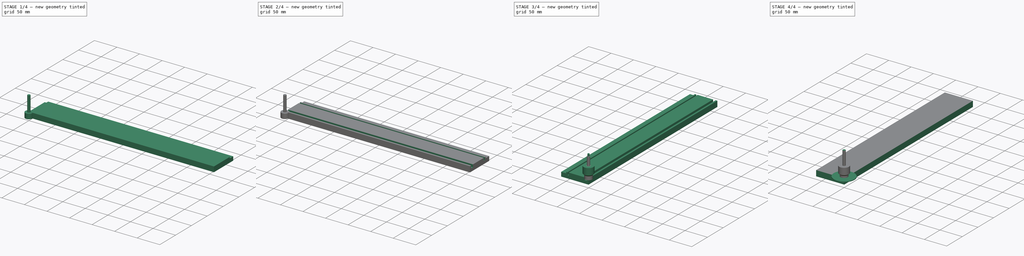
[diagram: build sequence overview — one tinted view per stage of 4, left to right]
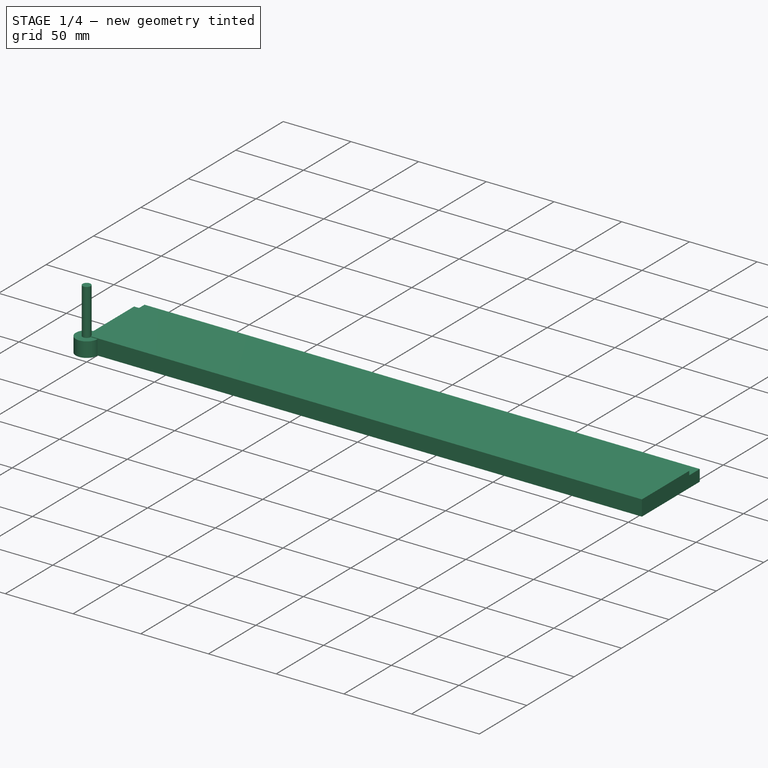
[diagram: stage 1 of 4 — iso view after this stage's code; geometry added in this stage tinted green]
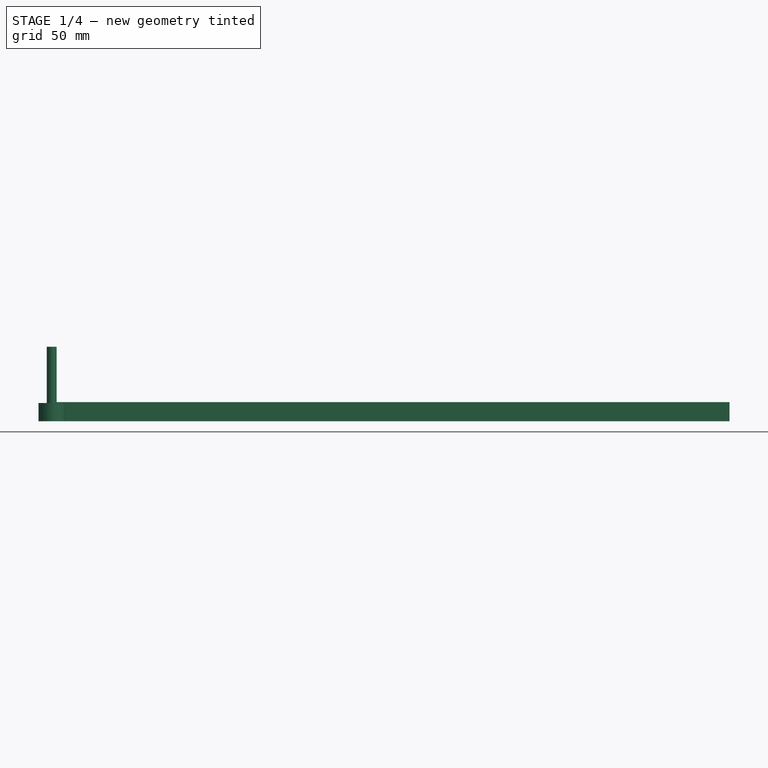
[diagram: stage 1 of 4 — front view after this stage's code; geometry added in this stage tinted green]
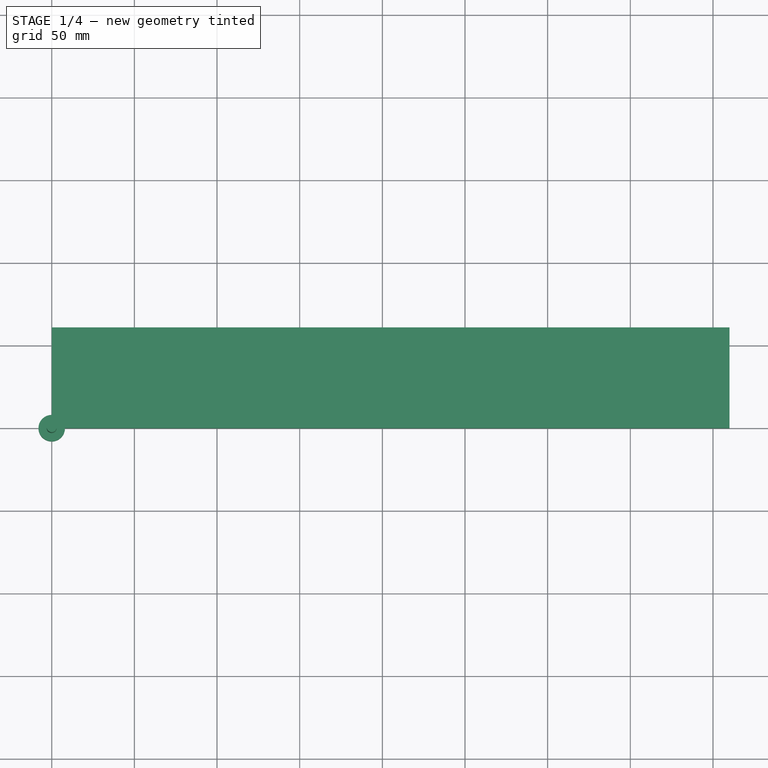
[diagram: stage 1 of 4 — top view after this stage's code; geometry added in this stage tinted green]
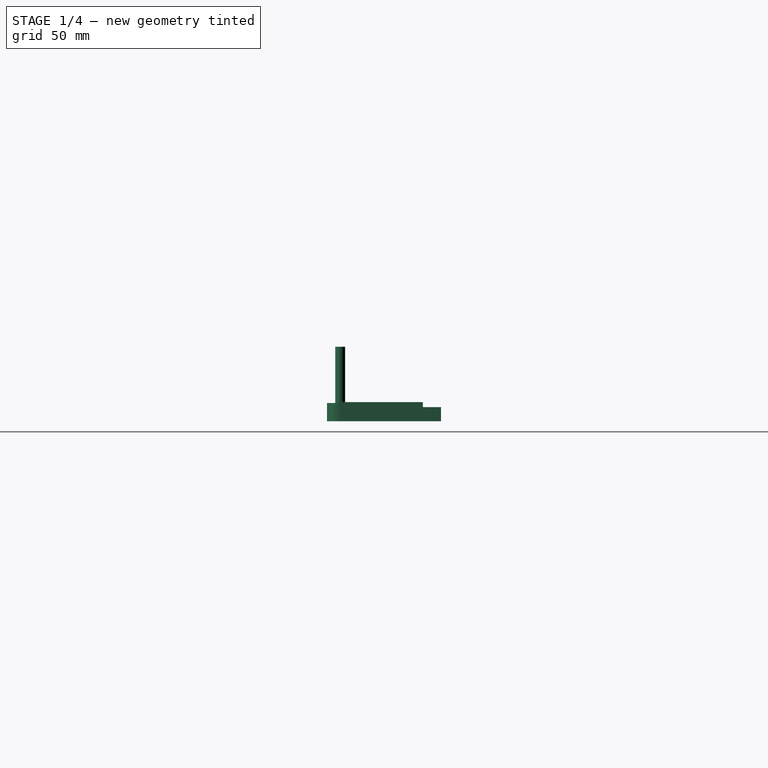
[diagram: stage 1 of 4 — right view after this stage's code; geometry added in this stage tinted green]
FCSTD DOCUMENT  (FreeCAD 0.21R33771 (Git))
Label: cnc_box_model
License: All rights reserved
LicenseURL: http://en.wikipedia.org/wiki/All_rights_reserved
objects: Path::FeaturePython×11, Part::Part2DObjectPython×10, Part::FeaturePython×8, Sketcher::SketchObject×6, App::DocumentObjectGroup×4, PartDesign::Pocket×3, PartDesign::Pad×2, App::Link×1, PartDesign::Body×1, App::FeaturePython×1
note: 40 computed .brp shape members not serialized (recipe doc carries the construction recipe); baked Part::Feature solids carry a one-line shape summary decoded from their .brp
EXTERNAL_REF file=../master_kumiko_box.FCStd obj=Spreadsheet

FEATURE [Sketcher::SketchObject] Sketch
  FullyConstrained = true
  MapMode = 5
  Support = -> [XY_Plane]
  expr: Constraints[10] = 2 * (<<SpreadSheet>>.box_length + <<SpreadSheet>>.box_width)
  expr: Constraints[9] = <<SpreadSheet>>.box_height - <<SpreadSheet>>.floor_edge + <<SpreadSheet>>.kumiko_thickness
  sketch-geometry (4):
    g0: LineSegment StartX=0 StartY=0 StartZ=0 EndX=410 EndY=0 EndZ=0
    g1: LineSegment StartX=410 StartY=0 StartZ=0 EndX=410 EndY=61 EndZ=0
    g2: LineSegment StartX=410 StartY=61 StartZ=0 EndX=0 EndY=61 EndZ=0
    g3: LineSegment StartX=0 StartY=61 StartZ=0 EndX=0 EndY=0 EndZ=0
  constraints (11):
    c: Coincident(g0,g1)
    c: Coincident(g1,g2)
    c: Coincident(g2,g3)
    c: Coincident(g3,g0)
    c: Horizontal(g0)
    c: Horizontal(g2)
    c: Vertical(g1)
    c: Vertical(g3)
    c: Coincident(g0,g-1)
    c: DistanceY(g3,g3) = 61
    c: DistanceX(g2,g2) = 410
FEATURE [App::Link] Link  label="SpreadSheet"
  LinkedObject = -> <external ../master_kumiko_box.FCStd>#Spreadsheet
FEATURE [PartDesign::Pad] Pad
  Direction = (0,0,1)
  Length = 11.5
  Length2 = 10
  Profile = -> Sketch
  ReferenceAxis = -> Sketch [N_Axis]
  Type = 0
  expr: Length = <<SpreadSheet>>.box_thickness
FEATURE [Sketcher::SketchObject] Sketch001
  FullyConstrained = true
  MapMode = 5
  Placement = pos=(0,0,0) rot=(0.57735,-0.57735,-0.57735;2.0944rad)
  Support = -> [Pad]
  expr: Constraints[10] = <<SpreadSheet>>.box_height - <<SpreadSheet>>.floor_edge + <<SpreadSheet>>.kumiko_thickness
  expr: Constraints[11] = <<SpreadSheet>>.kumiko_hight
  expr: Constraints[8] = <<SpreadSheet>>.kumiko_thickness
  expr: Constraints[9] = <<SpreadSheet>>.lid_frame_width
  sketch-geometry (4):
    g0: LineSegment StartX=-61 StartY=11.5 StartZ=0 EndX=-50 EndY=11.5 EndZ=0
    g1: LineSegment StartX=-50 StartY=11.5 StartZ=0 EndX=-50 EndY=8.5 EndZ=0
    g2: LineSegment StartX=-50 StartY=8.5 StartZ=0 EndX=-61 EndY=8.5 EndZ=0
    g3: LineSegment StartX=-61 StartY=8.5 StartZ=0 EndX=-61 EndY=11.5 EndZ=0
  constraints (12):
    c: Coincident(g0,g1)
    c: Coincident(g1,g2)
    c: Coincident(g2,g3)
    c: Coincident(g3,g0)
    c: Horizontal(g0)
    c: Horizontal(g2)
    c: Vertical(g1)
    c: Vertical(g3)
    c: DistanceY(g3,g3) = 3
    c: DistanceY(g-1,g1) = 8.5
    c: DistanceX(g2,g-1) = 61
    c: DistanceX(g0,g0) = 11
FEATURE [PartDesign::Pocket] Pocket
  BaseFeature = -> Pad
  Direction = (1,0,0)
  Length = 5
  Length2 = 5
  Profile = -> Sketch001
  ReferenceAxis = -> Sketch001 [N_Axis]
  Type = 1
FEATURE [Path::FeaturePython] FREES_5mm  label="FREES_5mm001"  # Path/CAM operation (typed FeaturePython)
  HorizFeed = 0
  HorizRapid = 0
  SpindleDir = 0
  SpindleSpeed = 0
  Tool = -> ToolBit003
  ToolNumber = 5
  VertFeed = 0
  VertRapid = 0
  expr: HorizRapid = SetupSheet.HorizRapid
  expr: VertRapid = SetupSheet.VertRapid
FEATURE [Path::FeaturePython] Profile  # Path/CAM operation (typed FeaturePython)
  Active = true
  AreaParams:
    Tolerance = 1e-07
    FitArcs = True
    Simplify = False
    CleanDistance = 0.0
    Accuracy = 0.01
    Unit = 1.0
    MinArcPoints = 4
    MaxArcPoints = 100
    ClipperScale = 10000000.0
    Fill = 0
    Coplanar = 0
    Reorient = True
    Outline = False
    Explode = False
    OpenMode = 0
    Deflection = 0.01
    SubjectFill = 0
    ClipFill = 0
    Offset = 2.5
    ExtraPass = 0
    Stepover = 0.0
    LastStepover = 0.0
    JoinType = 0
    EndType = 0
    MiterLimit = 2.0
    RoundPrecision = 0.0
    PocketMode = 0
    ToolRadius = 1.0
    PocketExtraOffset = 0.0
    PocketStepover = 0.0
    PocketLastStepover = 0.0
    FromCenter = False
    Angle = 45.0
    AngleShift = 0.0
    Shift = 0.0
    Thicken = False
    SectionCount = -1
    Stepdown = 1.0
    SectionOffset = 0.0
    SectionTolerance = 1e-07
    SectionMode = 2
    Project = False
  Base = -> [Clone]
  ClearanceHeight = 5
  CoolantMode = 0
  CycleTime = Cycletime Error
  Direction = 0
  FinalDepth = -11.5
  HandleMultipleFeatures = 0
  JoinType = 0
  MiterLimit = 0.1
  OffsetExtra = 0
  OpFinalDepth = -11.5
  OpStartDepth = 0
  OpStockZMax = 0
  OpStockZMin = -12.5
  OpToolDiameter = 5
  PathParams = {'orientation': 1, 'feedrate': 0.0, 'feedrate_v': 0.0, 'verbose': True, 'resume_height': 3.0, 'retraction': 5.0, 'return_end': True, 'preamble': False, 'start': Vector (0.0, 0.0, 0.0)}
  SafeHeight = 3
  Side = 0
  SplitArcs = false
  StartDepth = 0
  StartPoint = (0,0,0)
  StepDown = 1
  ToolController = -> FREES_5mm
  UseComp = true
  UseStartPoint = true
  processCircles = false
  processHoles = false
  processPerimeter = true
  expr: ClearanceHeight = OpStockZMax + SetupSheet.ClearanceHeightOffset
  expr: FinalDepth = OpFinalDepth
  expr: SafeHeight = OpStockZMax + SetupSheet.SafeHeightOffset
  expr: StartDepth = OpStartDepth
  expr: StepDown = 1
FEATURE [Path::FeaturePython] Pocket_Shape  # Path/CAM operation (typed FeaturePython)
  Active = true
  AreaParams:
    Tolerance = 1e-07
    FitArcs = True
    Simplify = False
    CleanDistance = 0.0
    Accuracy = 0.01
    Unit = 1.0
    MinArcPoints = 4
    MaxArcPoints = 100
    ClipperScale = 10000000.0
    Fill = 0
    Coplanar = 0
    Reorient = True
    Outline = False
    Explode = False
    OpenMode = 0
    Deflection = 0.01
    SubjectFill = 0
    ClipFill = 0
    Offset = 0.0
    ExtraPass = 0
    Stepover = 0.0
    LastStepover = 0.0
    JoinType = 0
    EndType = 0
    MiterLimit = 2.0
    RoundPrecision = 0.0
    PocketMode = 1
    ToolRadius = 2.5
    PocketExtraOffset = 0.0
    PocketStepover = 2.5
    PocketLastStepover = 0.0
    FromCenter = True
    Angle = 0.0
    AngleShift = 0.0
    Shift = 0.0
    Thicken = False
    SectionCount = -1
    Stepdown = 1.0
    SectionOffset = 0.0
    SectionTolerance = 1e-07
    SectionMode = 2
    Project = False
  Base = -> [Clone]
  ClearanceHeight = 5
  CoolantMode = 0
  CutMode = 0
  CycleTime = Cycletime Error
  ExtensionCorners = true
  ExtensionFeature = -> [Clone]
  ExtensionLengthDefault = 2.5
  ExtraOffset = 0
  FinalDepth = -3
  FinishDepth = 0.5
  KeepToolDown = false
  MinTravel = false
  OffsetPattern = 0
  OpFinalDepth = -3
  OpStartDepth = 0
  OpStockZMax = 0
  OpStockZMin = -12.5
  OpToolDiameter = 5
  PathParams = {'orientation': 1, 'feedrate': 0.0, 'feedrate_v': 0.0, 'verbose': True, 'resume_height': 3.0, 'retraction': 5.0, 'return_end': True, 'preamble': False, 'start': Vector (0.0, 0.0, 0.0)}
  PocketLastStepOver = 0
  SafeHeight = 3
  SplitArcs = false
  StartAt = 0
  StartDepth = 0
  StartPoint = (0,0,0)
  StepDown = 1
  StepOver = 50
  ToolController = -> FREES_5mm
  UseOutline = false
  UseStartPoint = true
  ZigZagAngle = 0
  expr: ClearanceHeight = OpStockZMax + SetupSheet.ClearanceHeightOffset
  expr: ExtensionLengthDefault = OpToolDiameter / 2
  expr: FinalDepth = OpFinalDepth
  expr: FinishDepth = 0.5
  expr: SafeHeight = OpStockZMax + SetupSheet.SafeHeightOffset
  expr: StartDepth = OpStartDepth
  expr: StepDown = 1
FEATURE [Path::FeaturePython] Pocket_Shape001  # Path/CAM operation (typed FeaturePython)
  Active = true
  AreaParams:
    Tolerance = 1e-07
    FitArcs = True
    Simplify = False
    CleanDistance = 0.0
    Accuracy = 0.01
    Unit = 1.0
    MinArcPoints = 4
    MaxArcPoints = 100
    ClipperScale = 10000000.0
    Fill = 0
    Coplanar = 0
    Reorient = True
    Outline = False
    Explode = False
    OpenMode = 0
    Deflection = 0.01
    SubjectFill = 0
    ClipFill = 0
    Offset = 0.0
    ExtraPass = 0
    Stepover = 0.0
    LastStepover = 0.0
    JoinType = 0
    EndType = 0
    MiterLimit = 2.0
    RoundPrecision = 0.0
    PocketMode = 1
    ToolRadius = 2.5
    PocketExtraOffset = 0.0
    PocketStepover = 1.5
    PocketLastStepover = 0.0
    FromCenter = True
    Angle = 90.0
    AngleShift = 0.0
    Shift = 0.0
    Thicken = False
    SectionCount = -1
    Stepdown = 1.0
    SectionOffset = 0.0
    SectionTolerance = 1e-07
    SectionMode = 2
    Project = False
  Base = -> [Clone]
  ClearanceHeight = 5
  CoolantMode = 0
  CutMode = 0
  CycleTime = Cycletime Error
  ExtensionCorners = true
  ExtensionFeature = -> [Clone]
  ExtensionLengthDefault = 2.5
  ExtraOffset = 0
  FinalDepth = -5.75
  FinishDepth = 0.5
  KeepToolDown = false
  MinTravel = false
  OffsetPattern = 0
  OpFinalDepth = -5.75
  OpStartDepth = 0
  OpStockZMax = 0
  OpStockZMin = -12.5
  OpToolDiameter = 5
  PathParams = {'orientation': 1, 'feedrate': 0.0, 'feedrate_v': 0.0, 'verbose': True, 'resume_height': 3.0, 'retraction': 5.0, 'return_end': True, 'preamble': False, 'start': Vector (0.0, 0.0, 0.0)}
  PocketLastStepOver = 0
  SafeHeight = 3
  SplitArcs = false
  StartAt = 0
  StartDepth = 0
  StartPoint = (0,0,0)
  StepDown = 1
  StepOver = 30
  ToolController = -> FREES_5mm
  UseOutline = false
  UseStartPoint = true
  ZigZagAngle = 90
  expr: ClearanceHeight = OpStockZMax + SetupSheet.ClearanceHeightOffset
  expr: ExtensionLengthDefault = OpToolDiameter / 2
  expr: FinalDepth = OpFinalDepth
  expr: FinishDepth = 0.5
  expr: SafeHeight = OpStockZMax + SetupSheet.SafeHeightOffset
  expr: StartDepth = OpStartDepth
  expr: StepDown = 1
FEATURE [Path::FeaturePython] Pocket_Shape002  # Path/CAM operation (typed FeaturePython)
  Active = true
  AreaParams:
    Tolerance = 1e-07
    FitArcs = True
    Simplify = False
    CleanDistance = 0.0
    Accuracy = 0.01
    Unit = 1.0
    MinArcPoints = 4
    MaxArcPoints = 100
    ClipperScale = 10000000.0
    Fill = 0
    Coplanar = 0
    Reorient = True
    Outline = False
    Explode = False
    OpenMode = 0
    Deflection = 0.01
    SubjectFill = 0
    ClipFill = 0
    Offset = 0.0
    ExtraPass = 0
    Stepover = 0.0
    LastStepover = 0.0
    JoinType = 0
    EndType = 0
    MiterLimit = 2.0
    RoundPrecision = 0.0
    PocketMode = 1
    ToolRadius = 1.0
    PocketExtraOffset = 0.0
    PocketStepover = 2.0
    PocketLastStepover = 0.0
    FromCenter = True
    Angle = 0.0
    AngleShift = 0.0
    Shift = 0.0
    Thicken = False
    SectionCount = -1
    Stepdown = 1.0
    SectionOffset = 0.0
    SectionTolerance = 1e-07
    SectionMode = 2
    Project = False
  Base = -> [Clone]
  ClearanceHeight = 5
  CoolantMode = 0
  CutMode = 0
  CycleTime = Cycletime Error
  ExtensionCorners = true
  ExtensionFeature = -> [Clone]
  ExtensionLengthDefault = 1
  ExtraOffset = 0
  FinalDepth = -5.75
  FinishDepth = 0.5
  KeepToolDown = false
  MinTravel = false
  OffsetPattern = 0
  OpFinalDepth = -5.75
  OpStartDepth = 0
  OpStockZMax = 0
  OpStockZMin = -12.5
  OpToolDiameter = 2
  PathParams = {'orientation': 1, 'feedrate': 0.0, 'feedrate_v': 0.0, 'verbose': True, 'resume_height': 3.0, 'retraction': 5.0, 'return_end': True, 'preamble': False, 'start': Vector (0.0, 0.0, 0.0)}
  PocketLastStepOver = 0
  SafeHeight = 3
  SplitArcs = false
  StartAt = 0
  StartDepth = 0
  StartPoint = (0,0,0)
  StepDown = 1
  StepOver = 100
  ToolController = -> FREES_2_mm
  UseOutline = false
  UseStartPoint = true
  ZigZagAngle = 0
  expr: ClearanceHeight = OpStockZMax + SetupSheet.ClearanceHeightOffset
  expr: ExtensionLengthDefault = OpToolDiameter / 2
  expr: FinalDepth = OpFinalDepth
  expr: FinishDepth = 0.5
  expr: SafeHeight = OpStockZMax + SetupSheet.SafeHeightOffset
  expr: StartDepth = OpStartDepth
  expr: StepDown = 1
FEATURE [Path::FeaturePython] Engrave  # Path/CAM operation (typed FeaturePython)
  Active = true
  BaseShapes = -> [Clone2D,Clone2D001,Clone2D002,Clone2D003,Clone2D004]
  ClearanceHeight = 5
  CoolantMode = 0
  CycleTime = Cycletime Error
  FinalDepth = -11.5
  OpFinalDepth = -1.5
  OpStartDepth = 0
  OpStockZMax = 0
  OpStockZMin = -12.5
  OpToolDiameter = 22
  SafeHeight = 3
  StartDepth = 0
  StartVertex = 0
  StepDown = 1.5
  ToolController = -> V_GROEF_FREES_22mm
  expr: ClearanceHeight = OpStockZMax + SetupSheet.ClearanceHeightOffset
  expr: FinalDepth = -11.5
  expr: SafeHeight = OpStockZMax + SetupSheet.SafeHeightOffset
  expr: StartDepth = OpStartDepth
  expr: StepDown = 1.5
FEATURE [Part::FeaturePython] ToolBit004  label="FREES_VLAK_16_mm"  # Path/CAM toolbit (typed FeaturePython)
  BitPropertyNames = Chipload | CuttingEdgeHeight | Diameter | Flutes | Length | Material | ShankDiameter | SpindleDirection
  BitShape = /Applications/FreeCAD.app/Contents/Resources/Mod/Path/Tools/Shape/endmill.fcstd
  Chipload = 0
  CuttingEdgeHeight = 11
  Diameter = 16
  File = <userpath>/Library/Application Support/FreeCAD/Macro/FREES_VLAK_16_mm.fctb
  Flutes = 0
  Length = 45
  Material = 0
  ShankDiameter = 6
  ShapeName = endmill
  SpindleDirection = 0
FEATURE [Path::FeaturePython] FREES_VLAK_16_mm  label="FREES_VLAK_16_mm001"  # Path/CAM operation (typed FeaturePython)
  HorizFeed = 0
  HorizRapid = 0
  SpindleDir = 0
  SpindleSpeed = 0
  Tool = -> ToolBit004
  ToolNumber = 6
  VertFeed = 0
  VertRapid = 0
  expr: HorizRapid = SetupSheet.HorizRapid
  expr: VertRapid = SetupSheet.VertRapid
FEATURE [App::DocumentObjectGroup] Tools
  Group = -> [FREES_2_mm,V_GROEF_FREES_22mm,FREES_5mm,FREES_VLAK_16_mm]
FEATURE [Path::FeaturePython] MillFace  # Path/CAM operation (typed FeaturePython)
  Active = true
  AreaParams:
    Tolerance = 1e-07
    FitArcs = True
    Simplify = False
    CleanDistance = 0.0
    Accuracy = 0.01
    Unit = 1.0
    MinArcPoints = 4
    MaxArcPoints = 100
    ClipperScale = 10000000.0
    Fill = 0
    Coplanar = 0
    Reorient = True
    Outline = False
    Explode = False
    OpenMode = 0
    Deflection = 0.01
    SubjectFill = 0
    ClipFill = 0
    Offset = 0.0
    ExtraPass = 0
    Stepover = 0.0
    LastStepover = 0.0
    JoinType = 0
    EndType = 0
    MiterLimit = 2.0
    RoundPrecision = 0.0
    PocketMode = 1
    ToolRadius = 8.0
    PocketExtraOffset = 0.0
    PocketStepover = 8.0
    PocketLastStepover = 0.0
    FromCenter = True
    Angle = 45.0
    AngleShift = 0.0
    Shift = 0.0
    Thicken = False
    SectionCount = -1
    Stepdown = 1.0
    SectionOffset = 0.0
    SectionTolerance = 1e-07
    SectionMode = 2
    Project = False
  Base = -> [Clone]
  BoundaryShape = 0
  ClearEdges = true
  ClearanceHeight = 5
  CoolantMode = 0
  CutMode = 0
  CycleTime = Cycletime Error
  ExcludeRaisedAreas = false
  ExtraOffset = 0
  FinalDepth = 0
  FinishDepth = 0.5
  KeepToolDown = false
  MinTravel = false
  OffsetPattern = 0
  OpFinalDepth = 0
  OpStartDepth = 1
  OpStockZMax = 0
  OpStockZMin = -12.5
  OpToolDiameter = 16
  PathParams = {'orientation': 1, 'feedrate': 0.0, 'feedrate_v': 0.0, 'verbose': True, 'resume_height': 3.0, 'retraction': 5.0, 'return_end': True, 'preamble': False, 'start': Vector (0.0, 0.0, 0.0)}
  PocketLastStepOver = 0
  SafeHeight = 3
  SplitArcs = false
  StartAt = 0
  StartDepth = 2
  StartPoint = (0,0,0)
  StepDown = 1
  StepOver = 50
  ToolController = -> FREES_VLAK_16_mm
  UseStartPoint = true
  ZigZagAngle = 45
  expr: ClearanceHeight = OpStockZMax + SetupSheet.ClearanceHeightOffset
  expr: FinalDepth = 0
  expr: SafeHeight = OpStockZMax + SetupSheet.SafeHeightOffset
  expr: StartDepth = 2
  expr: StepDown = 1
FEATURE [App::DocumentObjectGroup] Operations
  Group = -> [MillFace,Profile,Pocket_Shape,Pocket_Shape001,Pocket_Shape002,Engrave]
FEATURE [Path::FeaturePython] Job  # Path/CAM operation (typed FeaturePython)
  CycleTime = 00:00:00
  Fixtures = G54
  GeometryTolerance = 0.01
  JobType = 0
  LastPostProcessDate = 2024-04-10 21:15:05.689128
  LastPostProcessOutput = <userpath>/Documents/jewelry_kumiko_box/cnc/bin/kumiko_wall_nc.nc
  Model = -> Model
  Operations = -> Operations
  OrderOutputBy = 0
  PostProcessor = 14
  PostProcessorOutputFile = <userpath>/Documents/jewelry_kumiko_box/cnc/bin/kumiko_wall_nc
  SetupSheet = -> SetupSheet
  SplitOutput = false
  Stock = -> Stock
  Tools = -> Tools
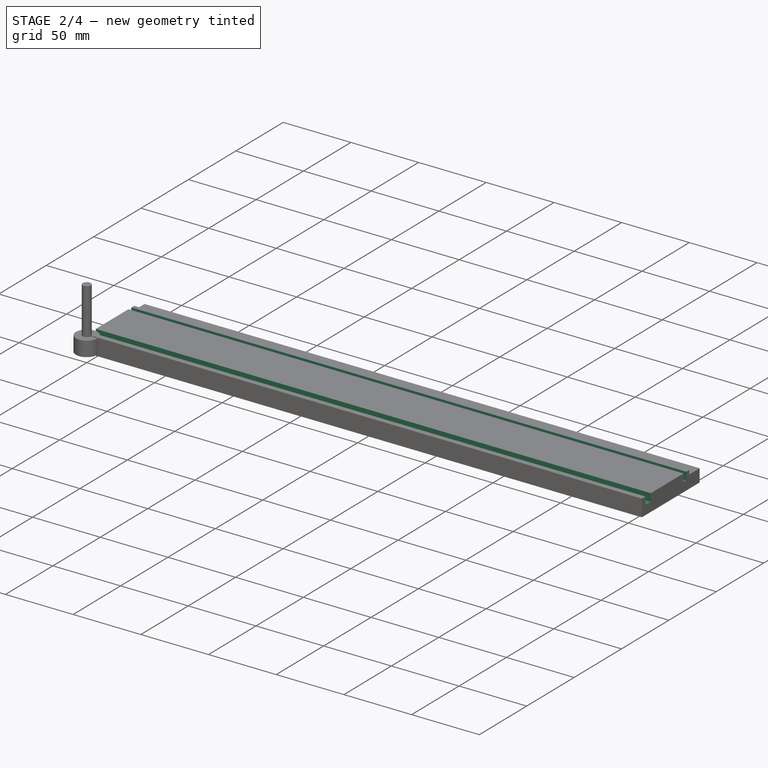
[diagram: stage 2 of 4 — iso view after this stage's code; geometry added in this stage tinted green]
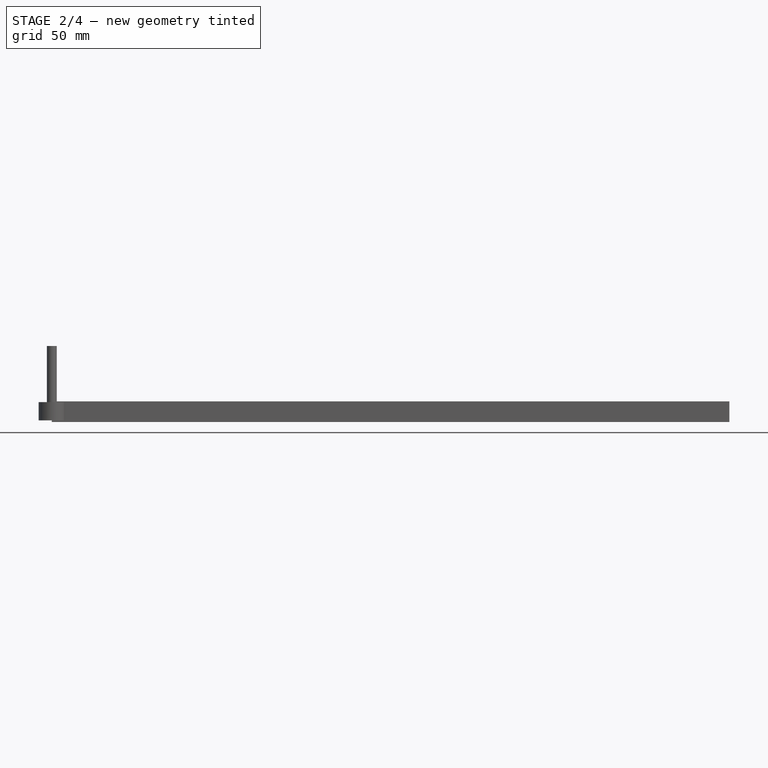
[diagram: stage 2 of 4 — front view after this stage's code; geometry added in this stage tinted green]
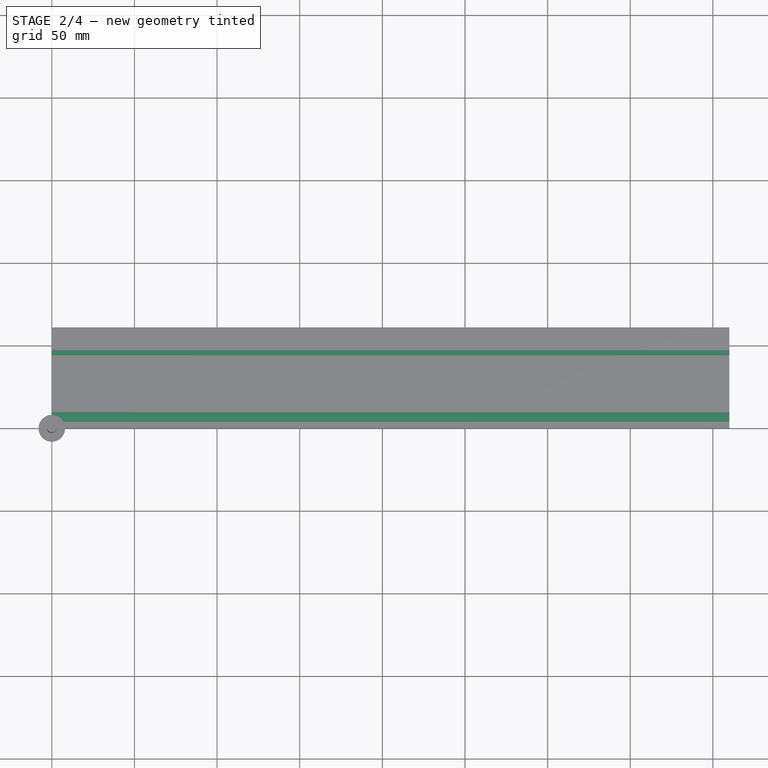
[diagram: stage 2 of 4 — top view after this stage's code; geometry added in this stage tinted green]
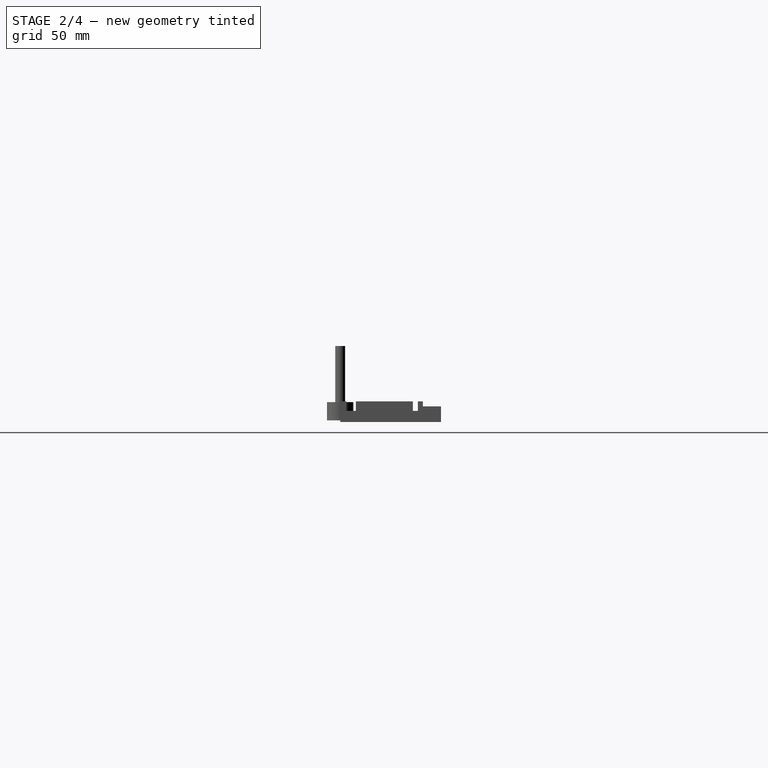
[diagram: stage 2 of 4 — right view after this stage's code; geometry added in this stage tinted green]
FEATURE [Sketcher::SketchObject] Sketch002
  FullyConstrained = true
  MapMode = 5
  Placement = pos=(0,0,0) rot=(0.57735,-0.57735,-0.57735;2.0944rad)
  Support = -> [Pocket]
  expr: Constraints[10] = <<SpreadSheet>>.box_thickness
  expr: Constraints[11] = <<SpreadSheet>>.box_thickness / 2 - <<SpreadSheet>>.floor_edge
  expr: Constraints[9] = <<SpreadSheet>>.box_thickness / 2
  sketch-geometry (4):
    g0: LineSegment StartX=-9.5 StartY=11.5 StartZ=0 EndX=-3.75 EndY=11.5 EndZ=0
    g1: LineSegment StartX=-3.75 StartY=11.5 StartZ=0 EndX=-3.75 EndY=5.75 EndZ=0
    g2: LineSegment StartX=-3.75 StartY=5.75 StartZ=0 EndX=-9.5 EndY=5.75 EndZ=0
    g3: LineSegment StartX=-9.5 StartY=5.75 StartZ=0 EndX=-9.5 EndY=11.5 EndZ=0
  constraints (12):
    c: Coincident(g0,g1)
    c: Coincident(g1,g2)
    c: Coincident(g2,g3)
    c: Coincident(g3,g0)
    c: Horizontal(g0)
    c: Horizontal(g2)
    c: Vertical(g1)
    c: Vertical(g3)
    c: Equal(g3,g2)
    c: DistanceY(g3,g3) = 5.75
    c: DistanceY(g-1,g0) = 11.5
    c: DistanceX(g0,g-1) = 3.75
FEATURE [PartDesign::Pocket] Pocket001
  BaseFeature = -> Pocket
  Direction = (1,0,0)
  Length = 5
  Length2 = 5
  Profile = -> Sketch002
  ReferenceAxis = -> Sketch002 [N_Axis]
  Type = 1
FEATURE [Sketcher::SketchObject] Sketch003
  FullyConstrained = true
  MapMode = 5
  Placement = pos=(0,0,0) rot=(0.57735,-0.57735,-0.57735;2.0944rad)
  Support = -> [Pocket001]
  expr: Constraints[10] = <<SpreadSheet>>.box_thickness
  expr: Constraints[11] = <<SpreadSheet>>.box_height - <<SpreadSheet>>.floor_edge - <<SpreadSheet>>.lid_height + <<SpreadSheet>>.kumiko_thickness
  expr: Constraints[8] = <<SpreadSheet>>.kumiko_thickness
  expr: Constraints[9] = <<SpreadSheet>>.box_thickness / 2
  sketch-geometry (4):
    g0: LineSegment StartX=-47 StartY=11.5 StartZ=0 EndX=-44 EndY=11.5 EndZ=0
    g1: LineSegment StartX=-44 StartY=11.5 StartZ=0 EndX=-44 EndY=5.75 EndZ=0
    g2: LineSegment StartX=-44 StartY=5.75 StartZ=0 EndX=-47 EndY=5.75 EndZ=0
    g3: LineSegment StartX=-47 StartY=5.75 StartZ=0 EndX=-47 EndY=11.5 EndZ=0
  constraints (12):
    c: Coincident(g0,g1)
    c: Coincident(g1,g2)
    c: Coincident(g2,g3)
    c: Coincident(g3,g0)
    c: Horizontal(g0)
    c: Horizontal(g2)
    c: Vertical(g1)
    c: Vertical(g3)
    c: DistanceX(g0,g0) = 3
    c: DistanceY(g3,g3) = 5.75
    c: DistanceY(g-1,g0) = 11.5
    c: DistanceX(g0,g-1) = 44
FEATURE [PartDesign::Pocket] Pocket002
  BaseFeature = -> Pocket001
  Direction = (1,0,0)
  Length = 5
  Length2 = 5
  Profile = -> Sketch003
  ReferenceAxis = -> Sketch003 [N_Axis]
  Type = 1
FEATURE [Sketcher::SketchObject] Sketch005
  FullyConstrained = true
  MapMode = 5
  Placement = pos=(0,0,0) rot=(1,0,0;3.14159rad)
  Support = -> [Pocket002]
  expr: Constraints[10] = <<SpreadSheet>>.box_height - <<SpreadSheet>>.floor_edge + <<SpreadSheet>>.kumiko_thickness
  expr: Constraints[9] = 2 * (<<SpreadSheet>>.box_length + <<SpreadSheet>>.box_width)
  sketch-geometry (4):
    g0: LineSegment StartX=0 StartY=0 StartZ=0 EndX=410 EndY=0 EndZ=0
    g1: LineSegment StartX=410 StartY=0 StartZ=0 EndX=410 EndY=-61 EndZ=0
    g2: LineSegment StartX=410 StartY=-61 StartZ=0 EndX=0 EndY=-61 EndZ=0
    g3: LineSegment StartX=0 StartY=-61 StartZ=0 EndX=0 EndY=0 EndZ=0
  constraints (11):
    c: Coincident(g0,g1)
    c: Coincident(g1,g2)
    c: Coincident(g2,g3)
    c: Coincident(g3,g0)
    c: Horizontal(g0)
    c: Horizontal(g2)
    c: Vertical(g1)
    c: Vertical(g3)
    c: Coincident(g0,g-1)
    c: DistanceX(g2,g2) = 410
    c: DistanceY(g3,g3) = 61
FEATURE [PartDesign::Pad] Pad001
  BaseFeature = -> Pocket002
  Direction = (0,0,-1)
  Length = 1
  Length2 = 10
  Profile = -> Sketch005
  ReferenceAxis = -> Sketch005 [N_Axis]
  Type = 0
  expr: Length = 1
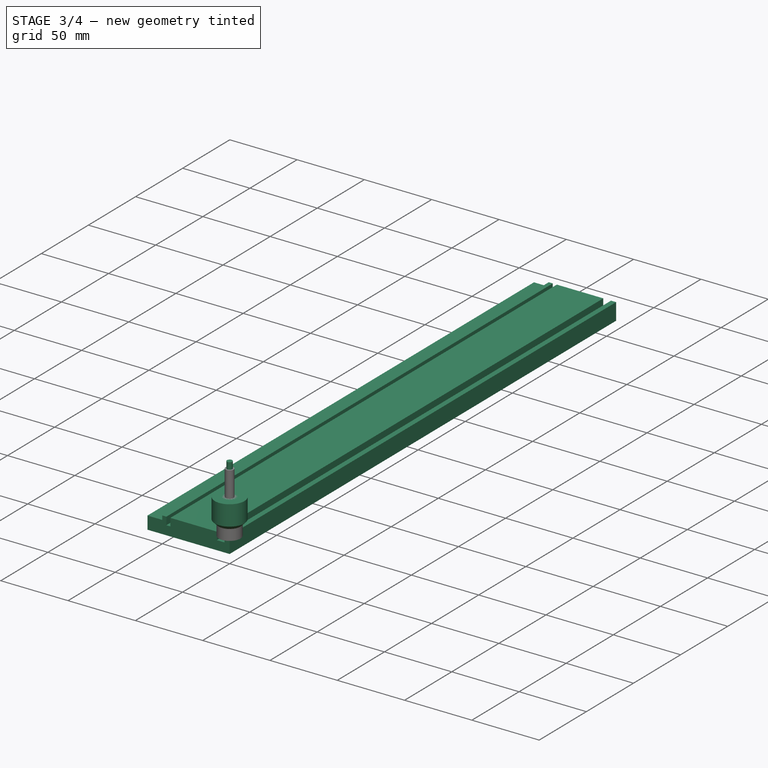
[diagram: stage 3 of 4 — iso view after this stage's code; geometry added in this stage tinted green]
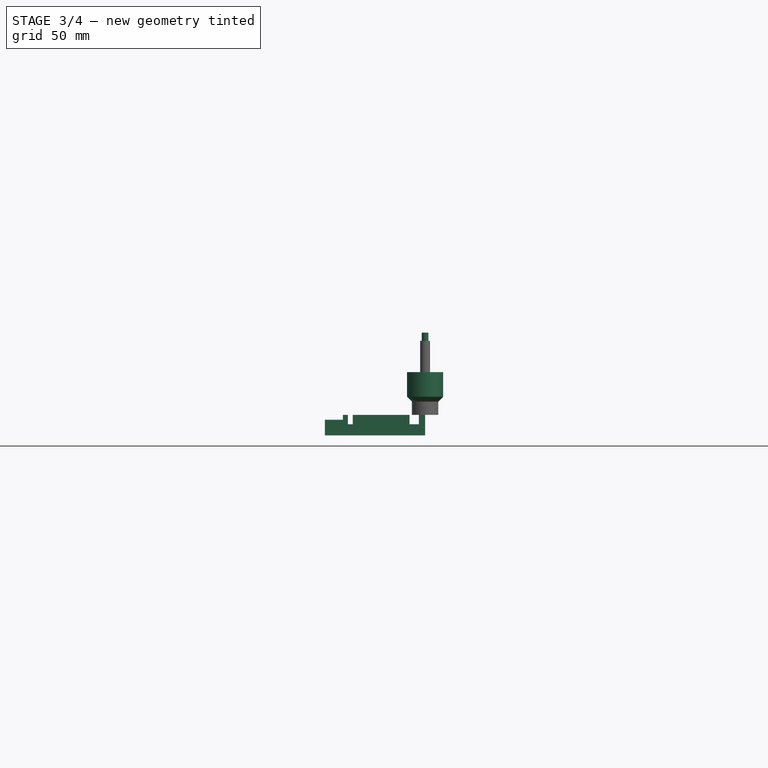
[diagram: stage 3 of 4 — front view after this stage's code; geometry added in this stage tinted green]
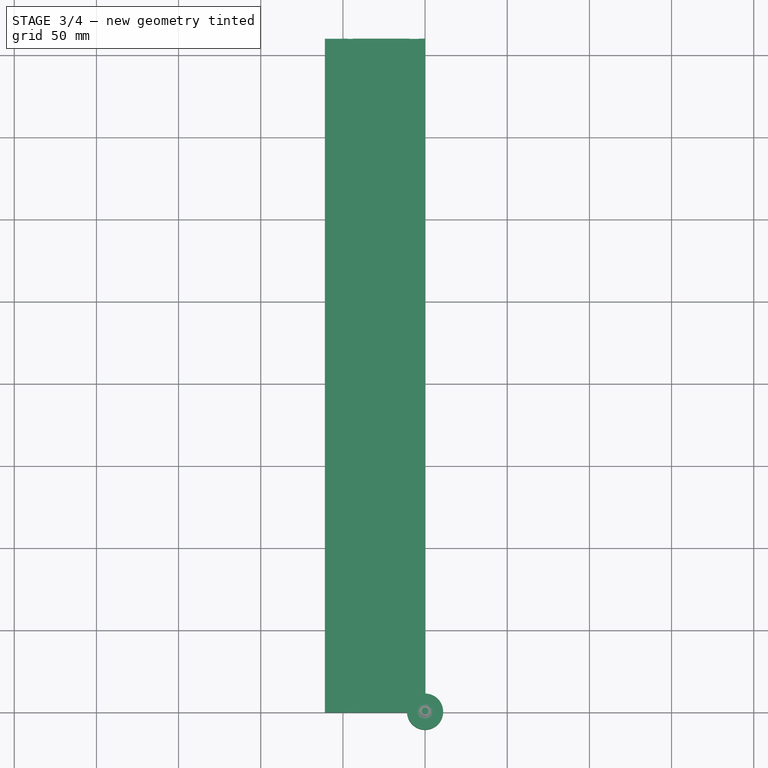
[diagram: stage 3 of 4 — top view after this stage's code; geometry added in this stage tinted green]
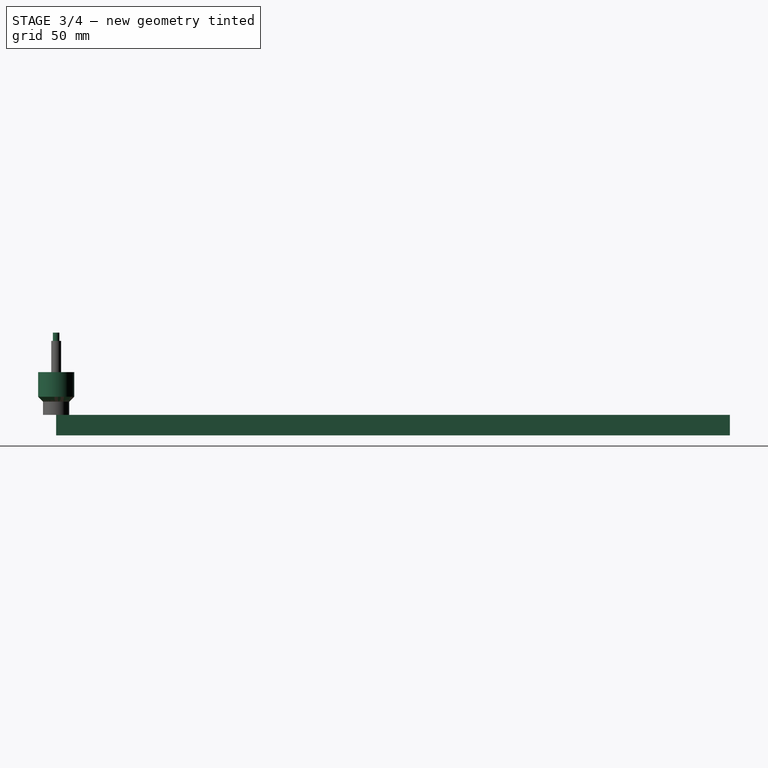
[diagram: stage 3 of 4 — right view after this stage's code; geometry added in this stage tinted green]
FEATURE [Part::Part2DObjectPython] Line  # Draft 2D object (typed FeaturePython)
  Area = 0
  ChamferSize = 0
  Closed = true
  End = (-61,0,-11.5)
  FilletRadius = 0
  Length = 61
  MakeFace = true
  Placement = pos=(0,0,-11.5) rot=(0,0,1;0rad)
  Points = (2) [(0,0,0),(-61,0,0)]
  Start = (0,0,-11.5)
  Subdivisions = 0
  expr: .End.x = -(<<SpreadSheet>>.box_height - <<SpreadSheet>>.floor_edge + <<SpreadSheet>>.kumiko_thickness)
  expr: .End.y = 0
  expr: .End.z = -<<SpreadSheet>>.box_thickness
  expr: .Placement.Base.x = 0
  expr: .Placement.Base.y = 0
  expr: .Placement.Base.z = -<<SpreadSheet>>.box_thickness
FEATURE [Part::Part2DObjectPython] Line001  # Draft 2D object (typed FeaturePython)
  Area = 0
  ChamferSize = 0
  Closed = false
  End = (-61,75,-11.5)
  FilletRadius = 0
  Length = 61
  MakeFace = true
  Placement = pos=(0,75,-11.5) rot=(1,0,0;0rad)
  Points = (2) [(0,0,0),(-61,0,0)]
  Start = (0,75,-11.5)
  Subdivisions = 0
  expr: .End.x = -(<<SpreadSheet>>.box_height - <<SpreadSheet>>.floor_edge + <<SpreadSheet>>.kumiko_thickness)
  expr: .End.y = <<SpreadSheet>>.box_width
  expr: .End.z = -<<SpreadSheet>>.box_thickness
  expr: .Placement.Base.x = 0
  expr: .Placement.Base.y = <<SpreadSheet>>.box_width
  expr: .Placement.Base.z = -<<SpreadSheet>>.box_thickness
FEATURE [Part::Part2DObjectPython] Line002  # Draft 2D object (typed FeaturePython)
  Area = 0
  ChamferSize = 0
  Closed = false
  End = (-61,205,-11.5)
  FilletRadius = 0
  Length = 61
  MakeFace = true
  Placement = pos=(0,205,-11.5) rot=(1,0,0;0rad)
  Points = (2) [(0,0,0),(-61,0,0)]
  Start = (0,205,-11.5)
  Subdivisions = 0
  expr: .End.x = -(<<SpreadSheet>>.box_height - <<SpreadSheet>>.floor_edge + <<SpreadSheet>>.kumiko_thickness)
  expr: .End.y = <<SpreadSheet>>.box_width + <<SpreadSheet>>.box_length
  expr: .End.z = -<<SpreadSheet>>.box_thickness
  expr: .Placement.Base.x = 0
  expr: .Placement.Base.y = <<SpreadSheet>>.box_width + <<SpreadSheet>>.box_length
  expr: .Placement.Base.z = -<<SpreadSheet>>.box_thickness
FEATURE [Part::Part2DObjectPython] Line003  label="Line004"  # Draft 2D object (typed FeaturePython)
  Area = 0
  ChamferSize = 0
  Closed = false
  End = (-61,410,-11.5)
  FilletRadius = 0
  Length = 61
  MakeFace = true
  Placement = pos=(0,410,-11.5) rot=(1,0,0;0rad)
  Points = (2) [(0,0,0),(-61,0,0)]
  Start = (0,410,-11.5)
  Subdivisions = 0
  expr: .End.x = -(<<SpreadSheet>>.box_height - <<SpreadSheet>>.floor_edge + <<SpreadSheet>>.kumiko_thickness)
  expr: .End.y = 2 * <<SpreadSheet>>.box_width + 2 * <<SpreadSheet>>.box_length
  expr: .End.z = -<<SpreadSheet>>.box_thickness
  expr: .Placement.Base.x = 0
  expr: .Placement.Base.y = 2 * <<SpreadSheet>>.box_width + 2 * <<SpreadSheet>>.box_length
  expr: .Placement.Base.z = -<<SpreadSheet>>.box_thickness
FEATURE [Part::Part2DObjectPython] Line004  label="Line003"  # Draft 2D object (typed FeaturePython)
  Area = 0
  ChamferSize = 0
  Closed = false
  End = (-61,280,-11.5)
  FilletRadius = 0
  Length = 61
  MakeFace = true
  Placement = pos=(0,280,-11.5) rot=(1,0,0;0rad)
  Points = (2) [(0,0,0),(-61,0,0)]
  Start = (0,280,-11.5)
  Subdivisions = 0
  expr: .End.x = -(<<SpreadSheet>>.box_height - <<SpreadSheet>>.floor_edge + <<SpreadSheet>>.kumiko_thickness)
  expr: .End.y = 2 * <<SpreadSheet>>.box_width + <<SpreadSheet>>.box_length
  expr: .End.z = -<<SpreadSheet>>.box_thickness
  expr: .Placement.Base.x = 0
  expr: .Placement.Base.y = 2 * <<SpreadSheet>>.box_width + <<SpreadSheet>>.box_length
  expr: .Placement.Base.z = -<<SpreadSheet>>.box_thickness
FEATURE [App::DocumentObjectGroup] Group  label="v_carve_lines"
  Group = -> [Line003,Line004,Line002,Line001,Line]
FEATURE [Sketcher::SketchObject] Sketch006
  FullyConstrained = true
  MapMode = 5
  Placement = pos=(0,0,0) rot=(0.57735,-0.57735,-0.57735;2.0944rad)
  Support = -> [Pad001]
  expr: Constraints[11] = -(<<SpreadSheet>>.box_height - <<SpreadSheet>>.floor_edge + <<SpreadSheet>>.kumiko_thickness - <<SpreadSheet>>.lid_height)
  expr: Constraints[8] = <<SpreadSheet>>.box_thickness / 2
  expr: Constraints[9] = <<SpreadSheet>>.kumiko_thickness
  sketch-geometry (4):
    g0: LineSegment StartX=-44 StartY=5.75 StartZ=0 EndX=-41 EndY=5.75 EndZ=0
    g1: LineSegment StartX=-41 StartY=5.75 StartZ=0 EndX=-41 EndY=0 EndZ=0
    g2: LineSegment StartX=-41 StartY=0 StartZ=0 EndX=-44 EndY=0 EndZ=0
    g3: LineSegment StartX=-44 StartY=0 StartZ=0 EndX=-44 EndY=5.75 EndZ=0
  constraints (12):
    c: Coincident(g0,g1)
    c: Coincident(g1,g2)
    c: Coincident(g2,g3)
    c: Coincident(g3,g0)
    c: Horizontal(g0)
    c: Horizontal(g2)
    c: Vertical(g1)
    c: Vertical(g3)
    c: DistanceY(g1,g1) = 5.75
    c: DistanceX(g0,g0) = 3
    c: DistanceY(g1) = 0
    c: DistanceX(g2) = -44
FEATURE [PartDesign::Body] Body  label="cnc_box_walls_and_lid"
  Group = -> [Sketch,Pad,Sketch001,Pocket,Sketch002,Pocket001,Sketch003,Pocket002,Sketch005,Pad001,Sketch006]
  Origin = -> Origin
  Placement = pos=(0,0,-11.5) rot=(0,0,1;1.5708rad)
  Tip = -> Pad001
  expr: .Placement.Base.z = -<<SpreadSheet>>.box_thickness
  expr: .Placement.Rotation.Angle = 90
FEATURE [App::FeaturePython] SetupSheet  # Path/CAM operation (typed FeaturePython)
  ClearanceHeightExpression = OpStockZMax+SetupSheet.ClearanceHeightOffset
  ClearanceHeightOffset = 5
  CoolantMode = 0
  CoolantModes = None | Flood | Mist
  FinalDepthExpression = OpFinalDepth
  HorizRapid = 0
  SafeHeightExpression = OpStockZMax+SetupSheet.SafeHeightOffset
  SafeHeightOffset = 3
  StartDepthExpression = OpStartDepth
  StepDownExpression = OpToolDiameter
  VertRapid = 0
FEATURE [Part::FeaturePython] Clone  label="Model-cnc_box_walls_and_lid"  # Draft clone (typed FeaturePython)
  AttacherType = Attacher::AttachEngine3D
  Fuse = false
  Objects = -> [Body]
  PathResource = Model
  Placement = pos=(0,0,-11.5) rot=(0,0,1;1.5708rad)
  Scale = (1,1,1)
FEATURE [Part::FeaturePython] ToolBit002  label="FREES_2_mm"  # Path/CAM toolbit (typed FeaturePython)
  BitPropertyNames = Chipload | CuttingEdgeHeight | Diameter | Flutes | Length | Material | ShankDiameter | SpindleDirection
  BitShape = /Applications/FreeCAD.app/Contents/Resources/Mod/Path/Tools/Shape/endmill.fcstd
  Chipload = 0
  CuttingEdgeHeight = 7
  Diameter = 2
  File = <userpath>/Library/Application Support/FreeCAD/Macro/FREES_2_mm.fctb
  Flutes = 0
  Length = 50
  Material = 0
  ShankDiameter = 4
  ShapeName = endmill
  SpindleDirection = 0
FEATURE [Path::FeaturePython] FREES_2_mm  label="FREES_2_mm001"  # Path/CAM operation (typed FeaturePython)
  HorizFeed = 0
  HorizRapid = 0
  SpindleDir = 0
  SpindleSpeed = 0
  Tool = -> ToolBit002
  ToolNumber = 3
  VertFeed = 0
  VertRapid = 0
  expr: HorizRapid = SetupSheet.HorizRapid
  expr: VertRapid = SetupSheet.VertRapid
FEATURE [Part::FeaturePython] ToolBit  label="V_GROEF_FREES_22mm"  # Path/CAM toolbit (typed FeaturePython)
  BitPropertyNames = Chipload | CuttingEdgeAngle | CuttingEdgeHeight | Diameter | Flutes | Length | Material | ShankDiameter | TipDiameter
  BitShape = /Applications/FreeCAD.app/Contents/Resources/Mod/Path/Tools/Shape/v-bit.fcstd
  Chipload = 0
  CuttingEdgeAngle = 90
  CuttingEdgeHeight = 15
  Diameter = 22
  File = <userpath>/Library/Application Support/FreeCAD/Macro/V_GROEF_FREES_22mm.fctb
  Flutes = 0
  Length = 44
  Material = 0
  ShankDiameter = 6
  ShapeName = v_bit
  TipDiameter = 0
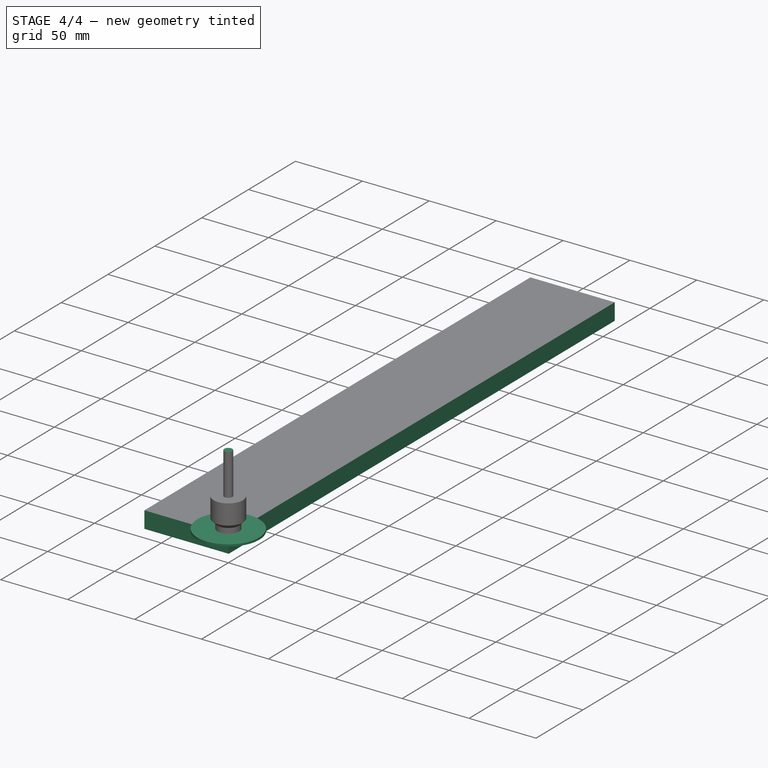
[diagram: stage 4 of 4 — iso view after this stage's code; geometry added in this stage tinted green]
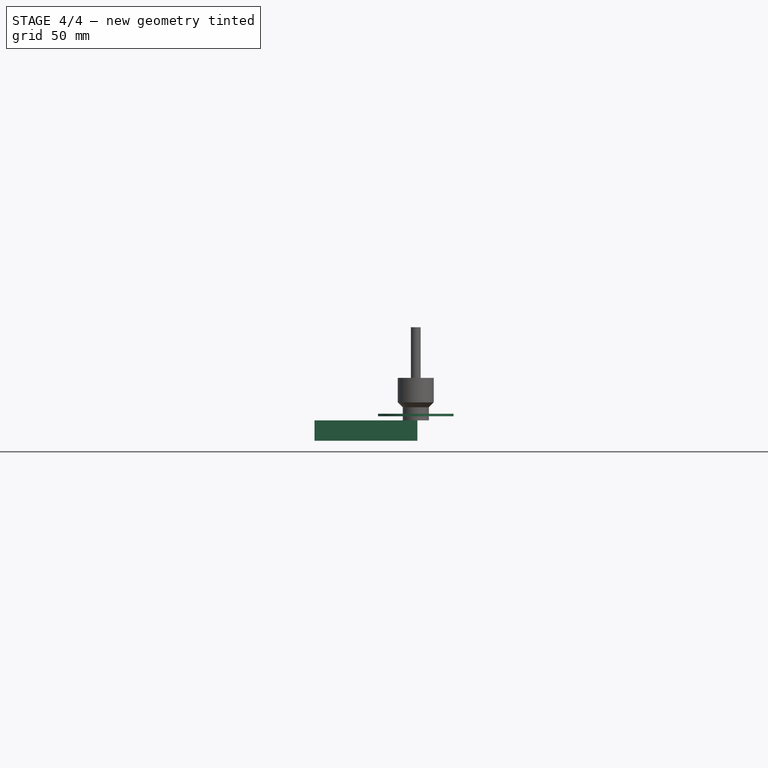
[diagram: stage 4 of 4 — front view after this stage's code; geometry added in this stage tinted green]
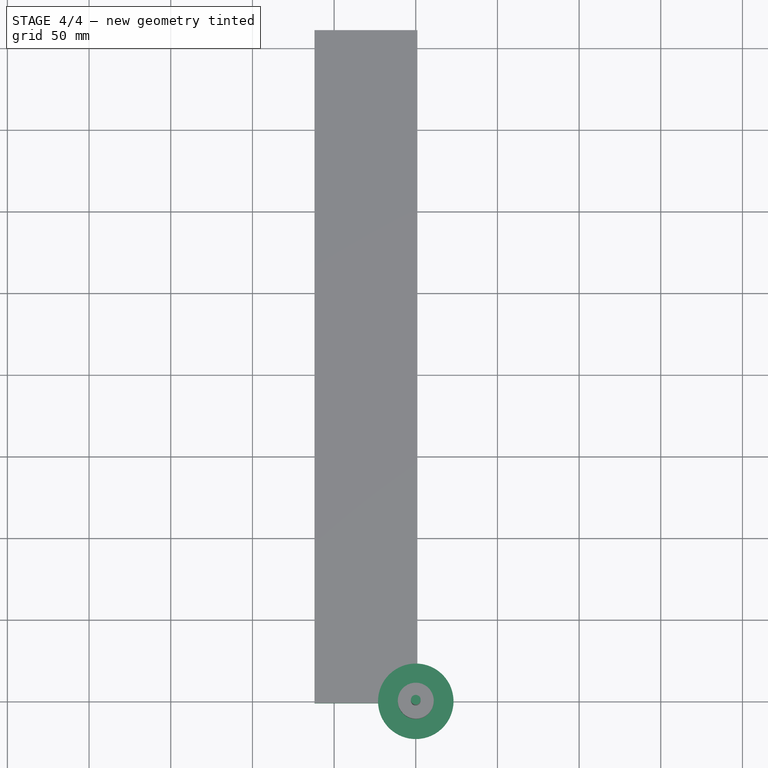
[diagram: stage 4 of 4 — top view after this stage's code; geometry added in this stage tinted green]
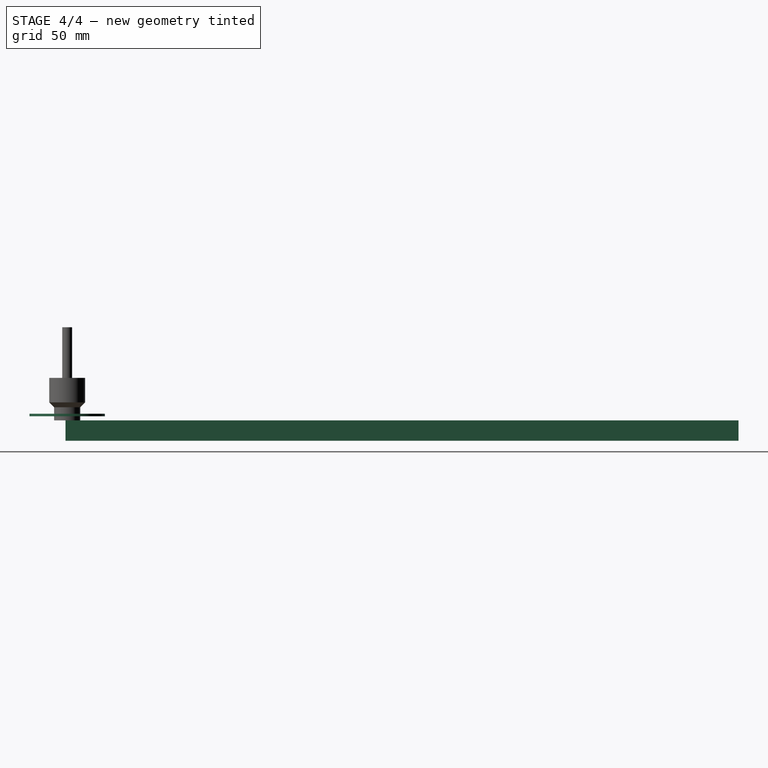
[diagram: stage 4 of 4 — right view after this stage's code; geometry added in this stage tinted green]
FEATURE [Part::FeaturePython] ToolBit001  label="SLID_SAW002"  # Path/CAM toolbit (typed FeaturePython)
  BitPropertyNames = BladeThickness | CapDiameter | CapHeight | Chipload | Diameter | Flutes | Length | Material | ShankDiameter
  BitShape = /Applications/FreeCAD.app/Contents/Resources/Mod/Path/Tools/Shape/slittingsaw.fcstd
  BladeThickness = 1.5
  CapDiameter = 10
  CapHeight = 2.5
  Chipload = 0
  Diameter = 46.2
  File = <userpath>/Library/Application Support/FreeCAD/Macro/SLID_SAW.fctb
  Flutes = 0
  Length = 10
  Material = 0
  ShankDiameter = 10
  ShapeName = slittingsaw
FEATURE [Part::Part2DObjectPython] Clone2D  label="Model-Line"  # Draft 2D object (typed FeaturePython)
  Fuse = false
  Objects = -> [Line]
  PathResource = Model
  Placement = pos=(0,0,-11.5) rot=(0,0,1;0rad)
  Scale = (1,1,1)
FEATURE [Part::Part2DObjectPython] Clone2D001  label="Model-Line001"  # Draft 2D object (typed FeaturePython)
  Fuse = false
  Objects = -> [Line001]
  PathResource = Model
  Placement = pos=(0,75,-11.5) rot=(1,0,0;0rad)
  Scale = (1,1,1)
FEATURE [Part::Part2DObjectPython] Clone2D002  label="Model-Line002"  # Draft 2D object (typed FeaturePython)
  Fuse = false
  Objects = -> [Line002]
  PathResource = Model
  Placement = pos=(0,205,-11.5) rot=(1,0,0;0rad)
  Scale = (1,1,1)
FEATURE [Part::Part2DObjectPython] Clone2D003  label="Model-Line003"  # Draft 2D object (typed FeaturePython)
  Fuse = false
  Objects = -> [Line004]
  PathResource = Model
  Placement = pos=(0,280,-11.5) rot=(1,0,0;0rad)
  Scale = (1,1,1)
FEATURE [Part::Part2DObjectPython] Clone2D004  label="Model-Line004"  # Draft 2D object (typed FeaturePython)
  Fuse = false
  Objects = -> [Line003]
  PathResource = Model
  Placement = pos=(0,410,-11.5) rot=(1,0,0;0rad)
  Scale = (1,1,1)
FEATURE [Part::FeaturePython] Clone001  label="Model-v_carve_lines"  # Draft clone (typed FeaturePython)
  AttacherType = Attacher::AttachEngine3D
  Fuse = false
  Objects = -> [Group]
  PathResource = Model
  Scale = (1,1,1)
FEATURE [App::DocumentObjectGroup] Model
  Group = -> [Clone,Clone2D,Clone2D001,Clone2D002,Clone2D003,Clone2D004,Clone001]
FEATURE [Part::FeaturePython] Stock  # WARN: FeaturePython — macro-defined, semantics opaque (R4)
  Base = -> Model
  ExtXneg = 1
  ExtXpos = 1
  ExtYneg = 1
  ExtYpos = 1
  ExtZneg = 0
  ExtZpos = 0
  Placement = pos=(-61,0,-12.5) rot=(0,0,1;0rad)
  StockType = FromBase
FEATURE [Path::FeaturePython] V_GROEF_FREES_22mm  label="V_GROEF_FREES_22mm001"  # Path/CAM operation (typed FeaturePython)
  HorizFeed = 0
  HorizRapid = 0
  SpindleDir = 0
  SpindleSpeed = 0
  Tool = -> ToolBit
  ToolNumber = 4
  VertFeed = 0
  VertRapid = 0
  expr: HorizRapid = SetupSheet.HorizRapid
  expr: VertRapid = SetupSheet.VertRapid
FEATURE [Part::FeaturePython] ToolBit003  label="FREES_5mm"  # Path/CAM toolbit (typed FeaturePython)
  BitPropertyNames = Chipload | CuttingEdgeHeight | Diameter | Flutes | Length | Material | ShankDiameter | SpindleDirection
  BitShape = /Applications/FreeCAD.app/Contents/Resources/Mod/Path/Tools/Shape/endmill.fcstd
  Chipload = 0
  CuttingEdgeHeight = 13
  Diameter = 5
  File = <userpath>/Library/Application Support/FreeCAD/Macro/FREES_5mm.fctb
  Flutes = 0
  Length = 57
  Material = 0
  ShankDiameter = 6
  ShapeName = endmill
  SpindleDirection = 0
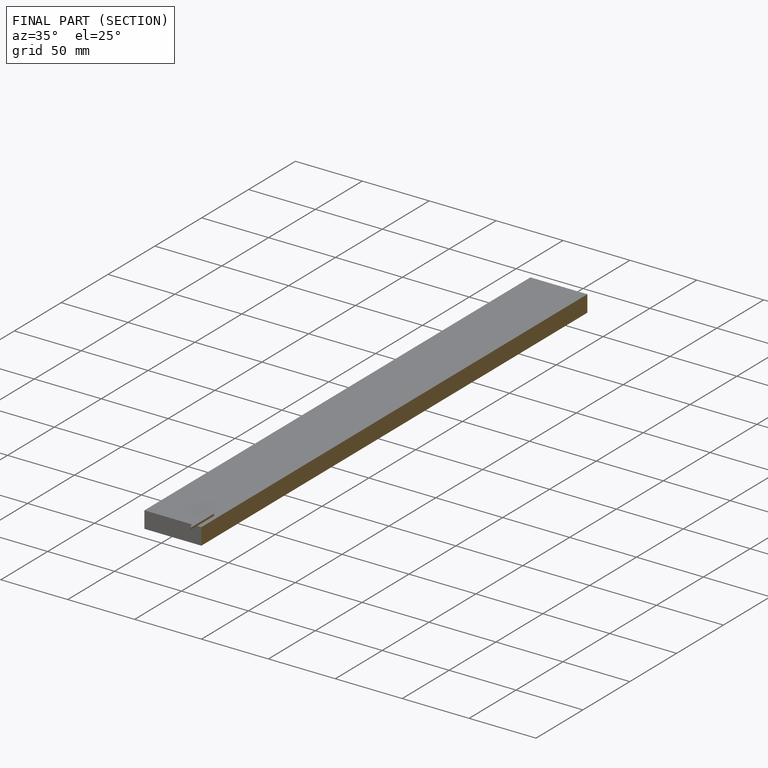
[diagram: finished part — half-section view (interior)]
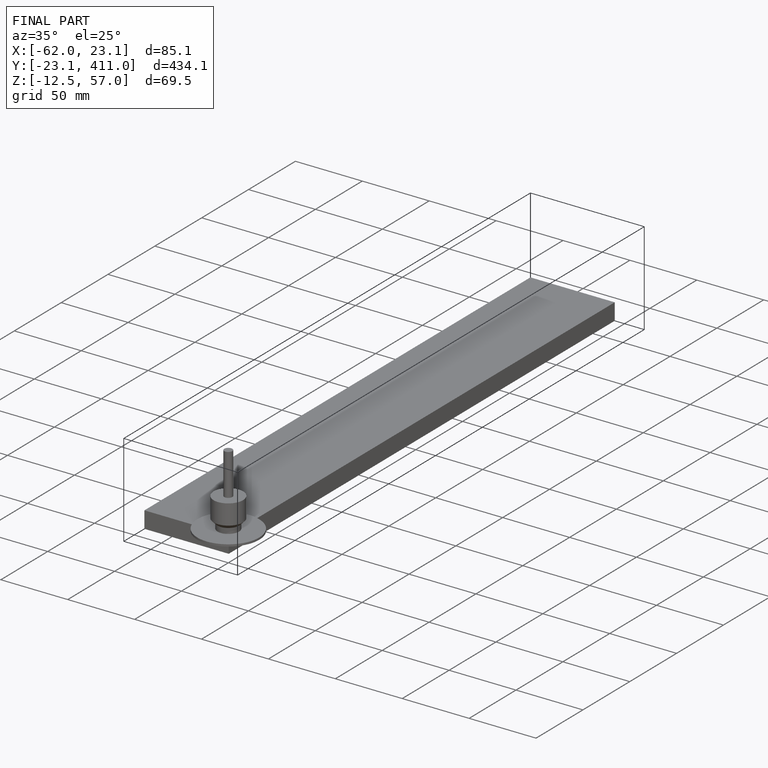
[diagram: finished part — iso view with bounding-box wireframe]
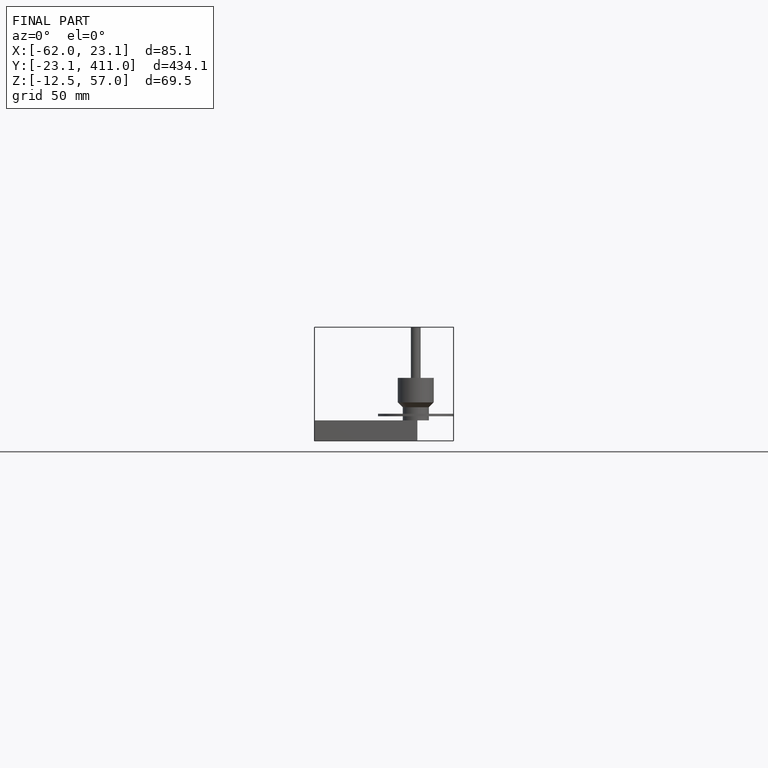
[diagram: finished part — front view with bounding-box wireframe]
